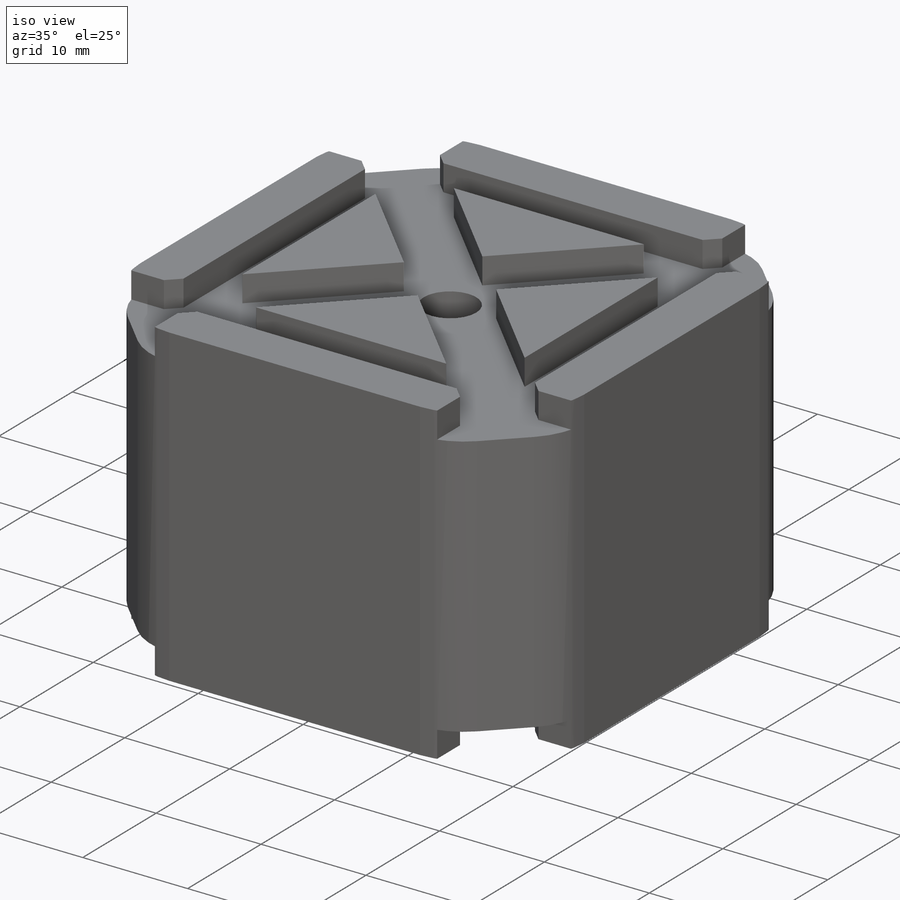
[diagram: iso view]
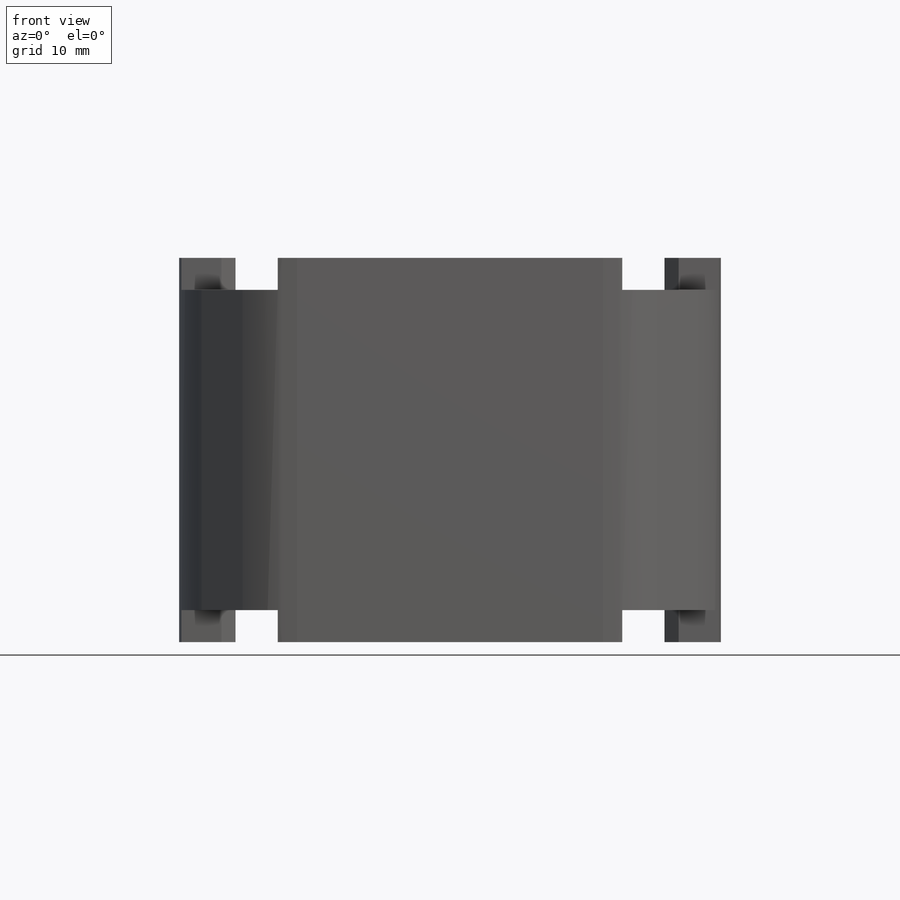
[diagram: front view]
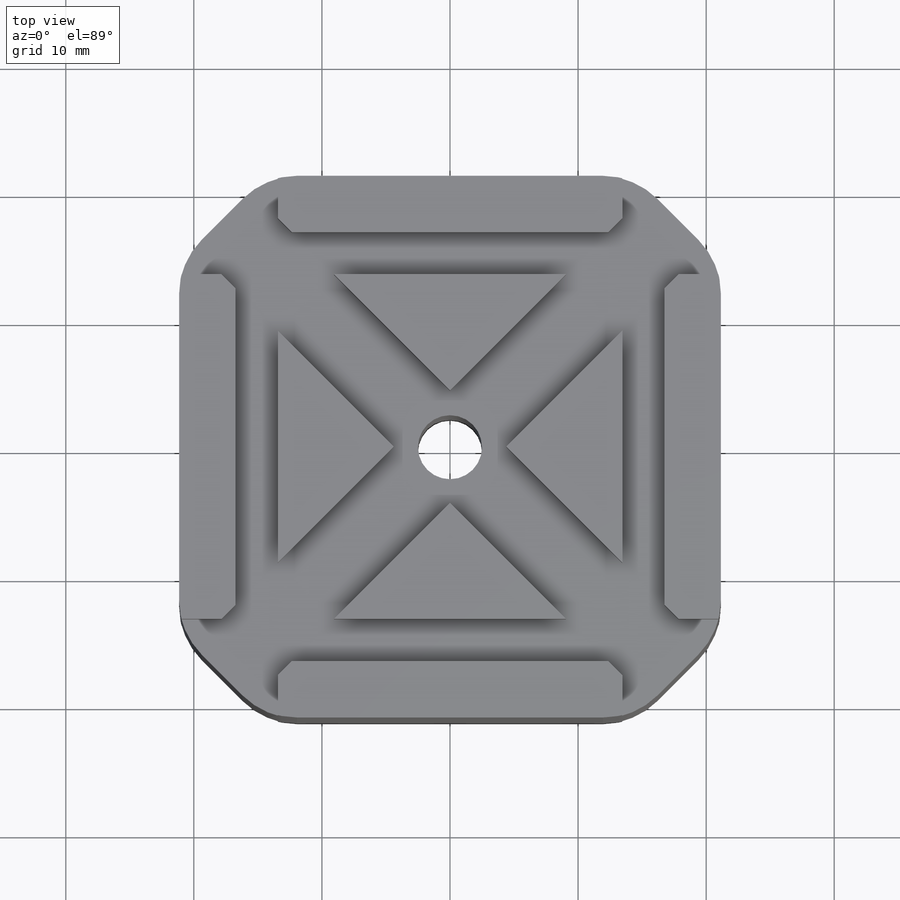
[diagram: top view]
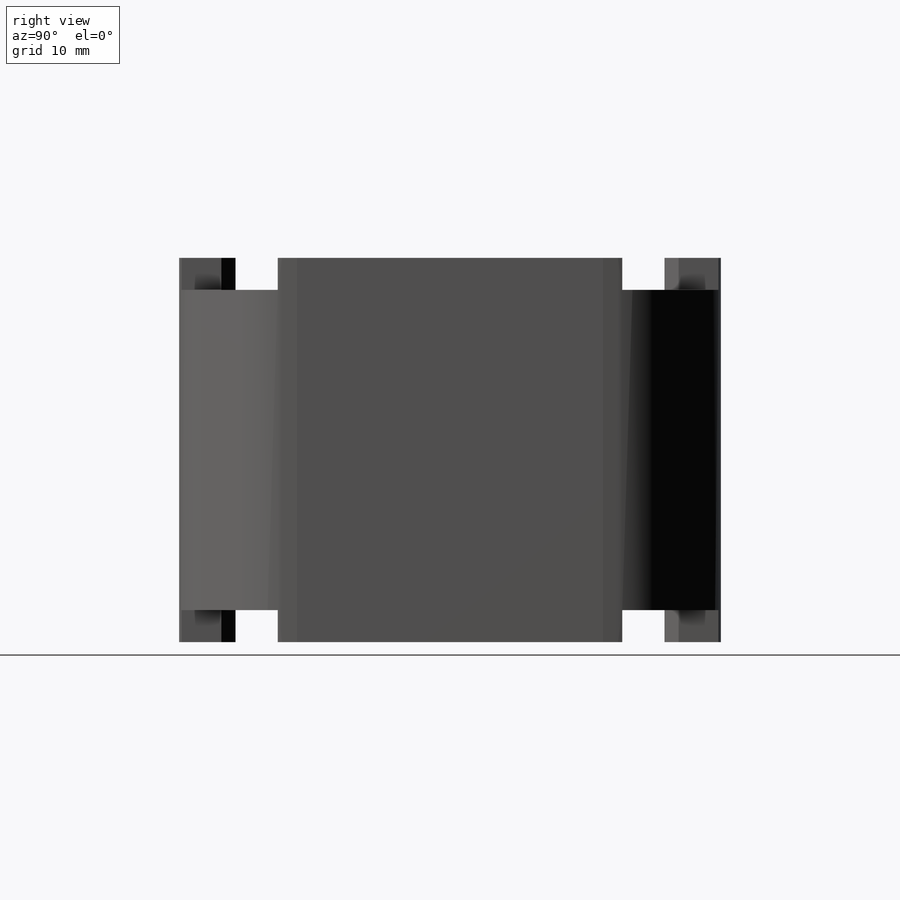
[diagram: right view]
SOLIDWORKS PART (.sldprt)
format: sldprt  version: not decoded by parser v0  size: 399,360 bytes
history: native  units: mm
features: sketch x7, cut_extrude x6, material x1, extrude x1, mirror x1, fillet x1 (+13 scaffold rows collapsed)
feature tree (30):
  scaffold x13  (default folders/planes/origin — collapsed)
  material  "Alumina"
  sketch  "Sketch1"  dims[c1.D1=42.3mm c1.D2=42.3mm c1.D3=~4.557112mm c2.D3=45.0deg c2.D4=~4.557112mm c3.D4=45.0deg c3.D5=~9.601182mm c4.D5=45.0deg c4.D6=~9.10398mm c5.D6=45.0deg c5.D7=53.6mm c5.D8=53.6mm c5.D9=~2.270366mm c6.D8=~50.265357mm c6.D3=53.6mm c6.D1=42.3mm c6.D2=42.3mm]
  extrude  "Boss-Extrude1"  Depth=15mm
  sketch  "Sketch18"  dims[D1=2.5mm D2=2.5mm D3=3.3mm D4=3.3mm]
  cut_extrude  "Cut-Extrude10"  [1 undecoded]
  sketch  "Sketch19"  dims[D1=3.3mm D2=3.3mm D3=2.5mm D4=2.5mm]
  cut_extrude  "Cut-Extrude11"  [1 undecoded]
  sketch  "Sketch20"
  cut_extrude  "Cut-Extrude12"  [1 undecoded]
  sketch  "Sketch21"
  cut_extrude  "Cut-Extrude13"  [1 undecoded]
  sketch  "Sketch22"  dims[D1=5.0mm]
  cut_extrude  "Cut-Extrude14"  [1 undecoded]
  mirror  "Mirror1"
  sketch  "Sketch23"  dims[D1=9.5mm D2=9.5mm D3=9.5mm D4=9.5mm D5=~6.717514mm]
  cut_extrude  "Cut-Extrude15"  [1 undecoded]
  fillet  "Fillet8"  Radius=6mm
decode coverage: 7 of 16 modeling features carry decoded parameters
note: ~ marks probable driven/reference dimensions
note: 6 parameter values undecoded
summary: no parameter record found for 6 features
note: suppression state not decoded; provenance and decode notes live in map.json
